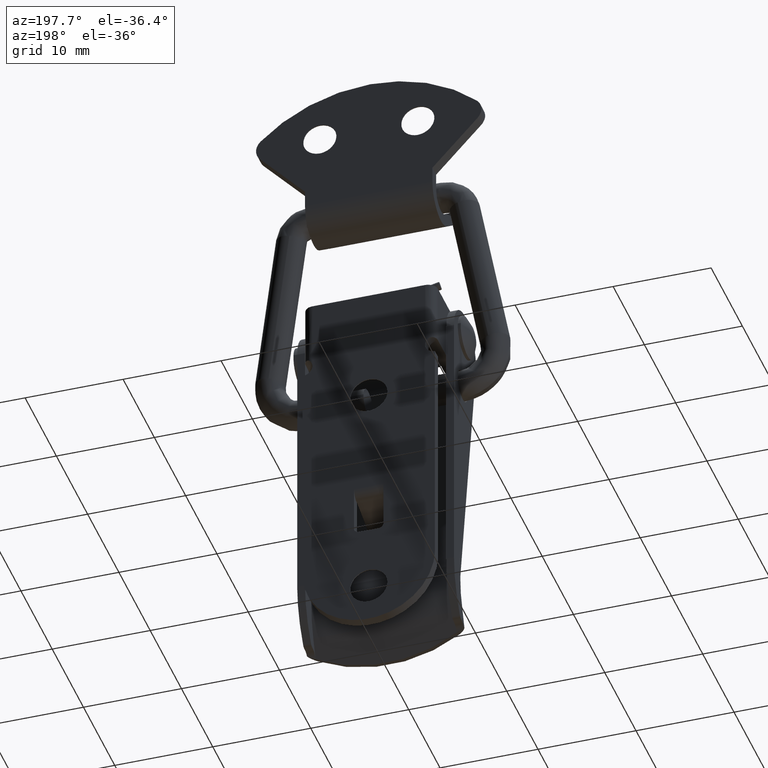
[diagram: clean part render]
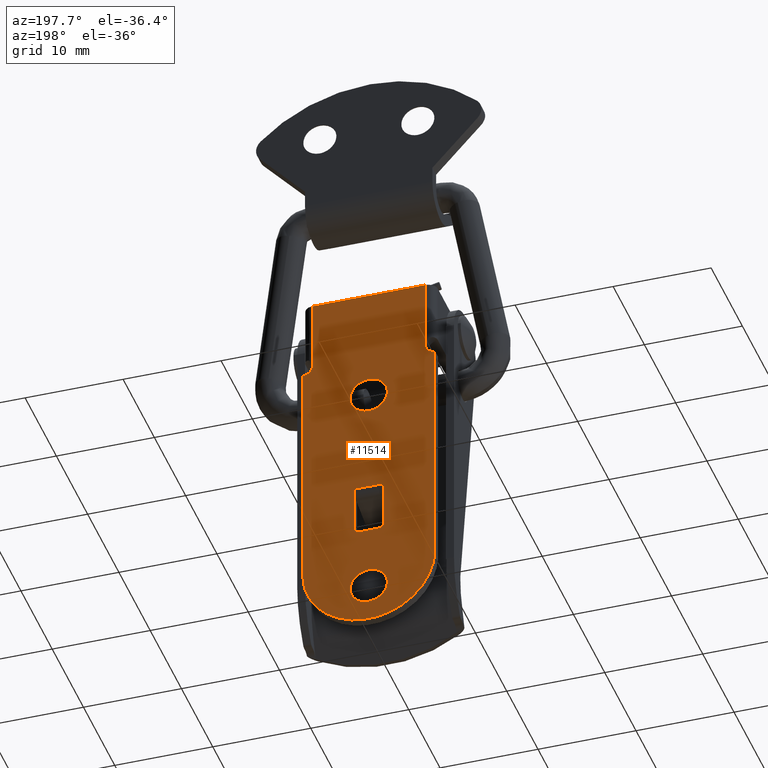
[diagram: same view with one face highlighted and labeled with its STEP entity id]
A machine part, auxiliary view. The second image highlights one B-rep face of the part: STEP entity #11514.
In plain terms, the highlighted face is a freeform B-spline surface patch.
Its self-contained STEP definition (entity closure, byte-faithful):
#9391=CARTESIAN_POINT('',(2.799999999998195,-1.896456117013207,-24.815992225307561));
#9392=VERTEX_POINT('',#9391);
#9398=CARTESIAN_POINT('',(2.799999999998195,-2.336265E-011,-26.600000000000001));
#9399=VERTEX_POINT('',#9398);
#9400=CARTESIAN_POINT('',(2.799999999998195,-2.336265E-011,-26.600000000000001));
#9401=CARTESIAN_POINT('',(2.799999999998195,-1.787341526782845,-26.599999999999998));
#9402=CARTESIAN_POINT('',(2.799999999998195,-1.896456117013206,-24.815992225307557));
#9410=(BOUNDED_CURVE()B_SPLINE_CURVE(2,(#9400,#9401,#9402),.UNSPECIFIED.,.F.,.U.)B_SPLINE_CURVE_WITH_KNOTS((3,3),(0.500000000000000,0.739332962207151),.UNSPECIFIED.)CURVE()GEOMETRIC_REPRESENTATION_ITEM()RATIONAL_B_SPLINE_CURVE((1.0,0.719603993323957,0.976072041598581))REPRESENTATION_ITEM(''));
#9411=EDGE_CURVE('',#9399,#9392,#9410,.T.);
#9413=CARTESIAN_POINT('',(2.799999999998195,0.668074151391913,-26.478672799648869));
#9414=VERTEX_POINT('',#9413);
#9415=CARTESIAN_POINT('',(2.799999999998196,0.668074151391913,-26.478672799648869));
#9416=CARTESIAN_POINT('',(2.799999999998195,0.345054033582145,-26.600000000000005));
#9417=CARTESIAN_POINT('',(2.799999999998195,-2.336265E-011,-26.600000000000001));
#9425=(BOUNDED_CURVE()B_SPLINE_CURVE(2,(#9415,#9416,#9417),.UNSPECIFIED.,.F.,.U.)B_SPLINE_CURVE_WITH_KNOTS((3,3),(0.440284170886248,0.500000000000000),.UNSPECIFIED.)CURVE()GEOMETRIC_REPRESENTATION_ITEM()RATIONAL_B_SPLINE_CURVE((0.893499554620272,0.930038554387037,1.0))REPRESENTATION_ITEM(''));
#9426=EDGE_CURVE('',#9414,#9399,#9425,.T.);
#9476=CARTESIAN_POINT('',(2.799999999998195,-2.336265E-011,-22.800000000000001));
#9477=VERTEX_POINT('',#9476);
#9478=CARTESIAN_POINT('',(2.799999999998195,-2.336265E-011,-22.800000000000001));
#9479=CARTESIAN_POINT('',(2.799999999998196,1.899999999976638,-22.799999999999997));
#9480=CARTESIAN_POINT('',(2.799999999998195,1.899999999976638,-24.699999999999999));
#9481=CARTESIAN_POINT('',(2.799999999998196,1.899999999976638,-26.015958231706708));
#9482=CARTESIAN_POINT('',(2.799999999998195,0.668074151391913,-26.478672799648873));
#9490=(BOUNDED_CURVE()B_SPLINE_CURVE(2,(#9478,#9479,#9480,#9481,#9482),.UNSPECIFIED.,.F.,.U.)B_SPLINE_CURVE_WITH_KNOTS((3,2,3),(0.0,0.250000000000000,0.440284170886248),.UNSPECIFIED.)CURVE()GEOMETRIC_REPRESENTATION_ITEM()RATIONAL_B_SPLINE_CURVE((1.0,0.707106781186547,1.0,0.777068226799511,0.893499554620271))REPRESENTATION_ITEM(''));
#9491=EDGE_CURVE('',#9477,#9414,#9490,.T.);
#9493=CARTESIAN_POINT('',(2.799999999998196,-1.896456117013207,-24.815992225307557));
#9494=CARTESIAN_POINT('',(2.799999999998196,-1.900000000023362,-24.758050250459192));
#9495=CARTESIAN_POINT('',(2.799999999998195,-1.900000000023363,-24.699999999999999));
#9496=CARTESIAN_POINT('',(2.799999999998196,-1.900000000023363,-22.799999999999997));
#9497=CARTESIAN_POINT('',(2.799999999998195,-2.336265E-011,-22.800000000000001));
#9505=(BOUNDED_CURVE()B_SPLINE_CURVE(2,(#9493,#9494,#9495,#9496,#9497),.UNSPECIFIED.,.F.,.U.)B_SPLINE_CURVE_WITH_KNOTS((3,2,3),(0.739332962207152,0.750000000000000,1.0),.UNSPECIFIED.)CURVE()GEOMETRIC_REPRESENTATION_ITEM()RATIONAL_B_SPLINE_CURVE((0.976072041598583,0.987502787862591,1.0,0.707106781186547,1.0))REPRESENTATION_ITEM(''));
#9506=EDGE_CURVE('',#9392,#9477,#9505,.T.);
#9719=CARTESIAN_POINT('',(2.799999999998195,-1.896456117013207,-47.815992225307568));
#9720=VERTEX_POINT('',#9719);
#9726=CARTESIAN_POINT('',(2.799999999998195,-2.336265E-011,-49.600000000000001));
#9727=VERTEX_POINT('',#9726);
#9728=CARTESIAN_POINT('',(2.799999999998195,-2.336265E-011,-49.600000000000001));
#9729=CARTESIAN_POINT('',(2.799999999998195,-1.787341526782845,-49.599999999999994));
#9730=CARTESIAN_POINT('',(2.799999999998195,-1.896456117013207,-47.815992225307568));
#9738=(BOUNDED_CURVE()B_SPLINE_CURVE(2,(#9728,#9729,#9730),.UNSPECIFIED.,.F.,.U.)B_SPLINE_CURVE_WITH_KNOTS((3,3),(0.500000000000000,0.739332962207151),.UNSPECIFIED.)CURVE()GEOMETRIC_REPRESENTATION_ITEM()RATIONAL_B_SPLINE_CURVE((1.0,0.719603993323957,0.976072041598581))REPRESENTATION_ITEM(''));
#9739=EDGE_CURVE('',#9727,#9720,#9738,.T.);
#9741=CARTESIAN_POINT('',(2.799999999998195,0.668074151391913,-49.478672799648884));
#9742=VERTEX_POINT('',#9741);
#9743=CARTESIAN_POINT('',(2.799999999998196,0.668074151391913,-49.478672799648876));
#9744=CARTESIAN_POINT('',(2.799999999998196,0.345054033582145,-49.600000000000001));
#9745=CARTESIAN_POINT('',(2.799999999998195,-2.336265E-011,-49.600000000000001));
#9753=(BOUNDED_CURVE()B_SPLINE_CURVE(2,(#9743,#9744,#9745),.UNSPECIFIED.,.F.,.U.)B_SPLINE_CURVE_WITH_KNOTS((3,3),(0.440284170886248,0.500000000000000),.UNSPECIFIED.)CURVE()GEOMETRIC_REPRESENTATION_ITEM()RATIONAL_B_SPLINE_CURVE((0.893499554620272,0.930038554387037,1.0))REPRESENTATION_ITEM(''));
#9754=EDGE_CURVE('',#9742,#9727,#9753,.T.);
#9804=CARTESIAN_POINT('',(2.799999999998195,-2.336265E-011,-45.799999999999997));
#9805=VERTEX_POINT('',#9804);
#9806=CARTESIAN_POINT('',(2.799999999998195,-2.336265E-011,-45.799999999999997));
#9807=CARTESIAN_POINT('',(2.799999999998196,1.899999999976638,-45.799999999999997));
#9808=CARTESIAN_POINT('',(2.799999999998195,1.899999999976638,-47.700000000000003));
#9809=CARTESIAN_POINT('',(2.799999999998196,1.899999999976638,-49.015958231706705));
#9810=CARTESIAN_POINT('',(2.799999999998195,0.668074151391913,-49.478672799648876));
#9818=(BOUNDED_CURVE()B_SPLINE_CURVE(2,(#9806,#9807,#9808,#9809,#9810),.UNSPECIFIED.,.F.,.U.)B_SPLINE_CURVE_WITH_KNOTS((3,2,3),(0.0,0.250000000000000,0.440284170886248),.UNSPECIFIED.)CURVE()GEOMETRIC_REPRESENTATION_ITEM()RATIONAL_B_SPLINE_CURVE((1.0,0.707106781186547,1.0,0.777068226799511,0.893499554620271))REPRESENTATION_ITEM(''));
#9819=EDGE_CURVE('',#9805,#9742,#9818,.T.);
#9821=CARTESIAN_POINT('',(2.799999999998195,-1.896456117013207,-47.815992225307568));
#9822=CARTESIAN_POINT('',(2.799999999998195,-1.900000000023362,-47.758050250459192));
#9823=CARTESIAN_POINT('',(2.799999999998195,-1.900000000023363,-47.700000000000003));
#9824=CARTESIAN_POINT('',(2.799999999998196,-1.900000000023363,-45.799999999999997));
#9825=CARTESIAN_POINT('',(2.799999999998195,-2.336265E-011,-45.799999999999997));
#9833=(BOUNDED_CURVE()B_SPLINE_CURVE(2,(#9821,#9822,#9823,#9824,#9825),.UNSPECIFIED.,.F.,.U.)B_SPLINE_CURVE_WITH_KNOTS((3,2,3),(0.739332962207151,0.750000000000000,1.0),.UNSPECIFIED.)CURVE()GEOMETRIC_REPRESENTATION_ITEM()RATIONAL_B_SPLINE_CURVE((0.976072041598582,0.987502787862591,1.0,0.707106781186547,1.0))REPRESENTATION_ITEM(''));
#9834=EDGE_CURVE('',#9720,#9805,#9833,.T.);
#10383=CARTESIAN_POINT('',(2.799999999998140,1.499999999979706,-35.735276180409997));
#10384=VERTEX_POINT('',#10383);
#10400=CARTESIAN_POINT('',(2.799999999998195,-1.500000000020180,-35.735276180409997));
#10401=VERTEX_POINT('',#10400);
#10402=CARTESIAN_POINT('',(2.799999999998195,-1.500000000020180,-35.735276180409997));
#10403=CARTESIAN_POINT('',(2.799999999998140,1.499999999979706,-35.735276180409997));
#10404=QUASI_UNIFORM_CURVE('',1,(#10402,#10403),.UNSPECIFIED.,.F.,.U.);
#10405=EDGE_CURVE('',#10401,#10384,#10404,.T.);
#10561=CARTESIAN_POINT('',(2.799999999998140,-1.500000000020180,-40.499999999948912));
#10562=VERTEX_POINT('',#10561);
#10563=CARTESIAN_POINT('',(2.799999999998195,-1.500000000020180,-35.735276180409997));
#10564=CARTESIAN_POINT('',(2.799999999998140,-1.500000000020180,-40.499999999948912));
#10565=QUASI_UNIFORM_CURVE('',1,(#10563,#10564),.UNSPECIFIED.,.F.,.U.);
#10566=EDGE_CURVE('',#10401,#10562,#10565,.T.);
#10581=CARTESIAN_POINT('',(2.799999999998140,1.499999999979820,-40.499999999946702));
#10582=VERTEX_POINT('',#10581);
#10583=CARTESIAN_POINT('',(2.799999999998140,1.499999999979820,-40.499999999946702));
#10584=CARTESIAN_POINT('',(2.799999999998140,1.499999999979706,-35.735276180409997));
#10585=QUASI_UNIFORM_CURVE('',1,(#10583,#10584),.UNSPECIFIED.,.F.,.U.);
#10586=EDGE_CURVE('',#10582,#10384,#10585,.T.);
#10633=CARTESIAN_POINT('',(2.799999999998140,0.999999999980389,-40.999999999946702));
#10634=VERTEX_POINT('',#10633);
#10640=CARTESIAN_POINT('',(2.799999999998140,0.999999999980389,-40.999999999946702));
#10641=CARTESIAN_POINT('',(2.799999999998139,1.499999999979822,-40.999999999946120));
#10642=CARTESIAN_POINT('',(2.799999999998140,1.499999999979821,-40.499999999946702));
#10650=(BOUNDED_CURVE()B_SPLINE_CURVE(2,(#10640,#10641,#10642),.UNSPECIFIED.,.F.,.U.)CURVE()GEOMETRIC_REPRESENTATION_ITEM()QUASI_UNIFORM_CURVE()RATIONAL_B_SPLINE_CURVE((1.0,0.707106781186949,1.0))REPRESENTATION_ITEM(''));
#10651=EDGE_CURVE('',#10634,#10582,#10650,.T.);
#10669=CARTESIAN_POINT('',(2.799999999998140,-1.000000000019610,-40.999999999948798));
#10670=VERTEX_POINT('',#10669);
#10676=CARTESIAN_POINT('',(2.799999999998140,-1.000000000019610,-40.999999999948798));
#10677=CARTESIAN_POINT('',(2.799999999998140,0.999999999980389,-40.999999999946702));
#10678=QUASI_UNIFORM_CURVE('',1,(#10676,#10677),.UNSPECIFIED.,.F.,.U.);
#10679=EDGE_CURVE('',#10670,#10634,#10678,.T.);
#10715=CARTESIAN_POINT('',(2.799999999998140,-1.500000000020180,-40.499999999948912));
#10716=CARTESIAN_POINT('',(2.799999999998140,-1.500000000020180,-40.707106781135614));
#10717=CARTESIAN_POINT('',(2.799999999998140,-1.353553390613252,-40.853553390542380));
#10718=CARTESIAN_POINT('',(2.799999999998140,-1.207106781206324,-40.999999999949139));
#10719=CARTESIAN_POINT('',(2.799999999998140,-1.000000000019610,-40.999999999948912));
#10727=(BOUNDED_CURVE()B_SPLINE_CURVE(2,(#10715,#10716,#10717,#10718,#10719),.UNSPECIFIED.,.F.,.U.)B_SPLINE_CURVE_WITH_KNOTS((3,2,3),(0.0,0.500000000000000,1.0),.UNSPECIFIED.)CURVE()GEOMETRIC_REPRESENTATION_ITEM()RATIONAL_B_SPLINE_CURVE((1.0,0.923879532511178,1.0,0.923879532511178,1.0))REPRESENTATION_ITEM(''));
#10728=EDGE_CURVE('',#10562,#10670,#10727,.T.);
#10750=CARTESIAN_POINT('',(2.799999999998195,-5.750000000121600,-12.699999999999999));
#10751=VERTEX_POINT('',#10750);
#10772=CARTESIAN_POINT('',(2.799999999998140,-5.750000000122270,-19.899999999992300));
#10773=VERTEX_POINT('',#10772);
#10807=CARTESIAN_POINT('',(2.799999999998195,-5.750000000121600,-12.699999999999999));
#10808=CARTESIAN_POINT('',(2.799999999998140,-5.750000000122270,-19.899999999992300));
#10809=QUASI_UNIFORM_CURVE('',1,(#10807,#10808),.UNSPECIFIED.,.F.,.U.);
#10810=EDGE_CURVE('',#10751,#10773,#10809,.T.);
#10829=CARTESIAN_POINT('',(2.799999999998195,5.749999999878350,-12.699999999999999));
#10830=VERTEX_POINT('',#10829);
#10846=CARTESIAN_POINT('',(2.799999999998140,5.749999999879890,-19.899999999994598));
#10847=VERTEX_POINT('',#10846);
#10848=CARTESIAN_POINT('',(2.799999999998140,5.749999999879890,-19.899999999994598));
#10849=CARTESIAN_POINT('',(2.799999999998195,5.749999999878350,-12.699999999999999));
#10850=QUASI_UNIFORM_CURVE('',1,(#10848,#10849),.UNSPECIFIED.,.F.,.U.);
#10851=EDGE_CURVE('',#10847,#10830,#10850,.T.);
#10910=CARTESIAN_POINT('',(2.799999999998140,-6.750000000121590,-44.950000000007300));
#10911=VERTEX_POINT('',#10910);
#10917=CARTESIAN_POINT('',(2.799999999998140,-6.750000000121590,-20.899999999992300));
#10918=VERTEX_POINT('',#10917);
#10919=CARTESIAN_POINT('',(2.799999999998140,-6.750000000121590,-44.950000000007300));
#10920=CARTESIAN_POINT('',(2.799999999998140,-6.750000000121590,-20.899999999992300));
#10921=QUASI_UNIFORM_CURVE('',1,(#10919,#10920),.UNSPECIFIED.,.F.,.U.);
#10922=EDGE_CURVE('',#10911,#10918,#10921,.T.);
#10950=CARTESIAN_POINT('',(2.799999999998140,-6.750000000121590,-20.899999999992300));
#10951=CARTESIAN_POINT('',(2.799999999998140,-5.750000000122269,-20.899999999992300));
#10952=CARTESIAN_POINT('',(2.799999999998140,-5.750000000122270,-19.899999999992300));
#10960=(BOUNDED_CURVE()B_SPLINE_CURVE(2,(#10950,#10951,#10952),.UNSPECIFIED.,.F.,.U.)CURVE()GEOMETRIC_REPRESENTATION_ITEM()QUASI_UNIFORM_CURVE()RATIONAL_B_SPLINE_CURVE((1.0,0.707106781186548,1.0))REPRESENTATION_ITEM(''));
#10961=EDGE_CURVE('',#10918,#10773,#10960,.T.);
#11019=CARTESIAN_POINT('',(2.799999999998140,6.749999999878470,-20.899999999994598));
#11020=VERTEX_POINT('',#11019);
#11021=CARTESIAN_POINT('',(2.799999999998140,5.749999999879890,-19.899999999994598));
#11022=CARTESIAN_POINT('',(2.799999999998140,5.749999999879890,-20.899999999994606));
#11023=CARTESIAN_POINT('',(2.799999999998140,6.749999999878470,-20.899999999994598));
#11031=(BOUNDED_CURVE()B_SPLINE_CURVE(2,(#11021,#11022,#11023),.UNSPECIFIED.,.F.,.U.)CURVE()GEOMETRIC_REPRESENTATION_ITEM()QUASI_UNIFORM_CURVE()RATIONAL_B_SPLINE_CURVE((1.0,0.707106781186548,1.0))REPRESENTATION_ITEM(''));
#11032=EDGE_CURVE('',#10847,#11020,#11031,.T.);
#11055=CARTESIAN_POINT('',(2.799999999998140,6.749999999878299,-44.950000000007300));
#11056=VERTEX_POINT('',#11055);
#11057=CARTESIAN_POINT('',(2.799999999998140,6.749999999878470,-20.899999999994598));
#11058=CARTESIAN_POINT('',(2.799999999998140,6.749999999878299,-44.950000000007300));
#11059=QUASI_UNIFORM_CURVE('',1,(#11057,#11058),.UNSPECIFIED.,.F.,.U.);
#11060=EDGE_CURVE('',#11020,#11056,#11059,.T.);
#11104=CARTESIAN_POINT('',(2.799999999998140,-6.750000000121588,-44.950000000007300));
#11105=CARTESIAN_POINT('',(2.799999999998140,-6.750000000121587,-51.700000000007293));
#11106=CARTESIAN_POINT('',(2.799999999998140,-1.215881E-010,-51.700000000007293));
#11107=CARTESIAN_POINT('',(2.799999999998140,6.749999999878411,-51.700000000007293));
#11108=CARTESIAN_POINT('',(2.799999999998140,6.749999999878411,-44.950000000007300));
#11116=(BOUNDED_CURVE()B_SPLINE_CURVE(2,(#11104,#11105,#11106,#11107,#11108),.UNSPECIFIED.,.F.,.U.)B_SPLINE_CURVE_WITH_KNOTS((3,2,3),(0.0,0.500000000000000,1.0),.UNSPECIFIED.)CURVE()GEOMETRIC_REPRESENTATION_ITEM()RATIONAL_B_SPLINE_CURVE((1.0,0.707106781186548,1.0,0.707106781186548,1.0))REPRESENTATION_ITEM(''));
#11117=EDGE_CURVE('',#10911,#11056,#11116,.T.);
#11386=CARTESIAN_POINT('',(2.799999999998195,5.749999999878350,-12.699999999999999));
#11387=CARTESIAN_POINT('',(2.799999999998195,-5.750000000121600,-12.699999999999999));
#11388=QUASI_UNIFORM_CURVE('',1,(#11386,#11387),.UNSPECIFIED.,.F.,.U.);
#11389=EDGE_CURVE('',#10830,#10751,#11388,.T.);
#11479=CARTESIAN_POINT('',(2.799999999998195,-7.424324973955972,-53.648051022730257));
#11480=CARTESIAN_POINT('',(2.799999999998195,-7.424324973955972,-10.751948977276930));
#11481=CARTESIAN_POINT('',(2.799999999998195,7.424325335811071,-53.648051022730257));
#11482=CARTESIAN_POINT('',(2.799999999998195,7.424325335811071,-10.751948977276930));
#11483=B_SPLINE_SURFACE_WITH_KNOTS('',1,1,((#11479,#11481),(#11480,#11482)),.UNSPECIFIED.,.F.,.F.,.U.,(2,2),(2,2),(0.0,42.896102045453333),(0.0,14.848650309767040),.UNSPECIFIED.);
#11484=ORIENTED_EDGE('',*,*,#11032,.F.);
#11485=ORIENTED_EDGE('',*,*,#10851,.T.);
#11486=ORIENTED_EDGE('',*,*,#11389,.T.);
#11487=ORIENTED_EDGE('',*,*,#10810,.T.);
#11488=ORIENTED_EDGE('',*,*,#10961,.F.);
#11489=ORIENTED_EDGE('',*,*,#10922,.F.);
#11490=ORIENTED_EDGE('',*,*,#11117,.T.);
#11491=ORIENTED_EDGE('',*,*,#11060,.F.);
#11492=EDGE_LOOP('',(#11484,#11485,#11486,#11487,#11488,#11489,#11490,#11491));
#11493=FACE_OUTER_BOUND('',#11492,.T.);
#11494=ORIENTED_EDGE('',*,*,#10566,.F.);
#11495=ORIENTED_EDGE('',*,*,#10405,.T.);
#11496=ORIENTED_EDGE('',*,*,#10586,.F.);
#11497=ORIENTED_EDGE('',*,*,#10651,.F.);
#11498=ORIENTED_EDGE('',*,*,#10679,.F.);
#11499=ORIENTED_EDGE('',*,*,#10728,.F.);
#11500=EDGE_LOOP('',(#11494,#11495,#11496,#11497,#11498,#11499));
#11501=FACE_BOUND('',#11500,.T.);
#11502=ORIENTED_EDGE('',*,*,#9739,.T.);
#11503=ORIENTED_EDGE('',*,*,#9834,.T.);
#11504=ORIENTED_EDGE('',*,*,#9819,.T.);
#11505=ORIENTED_EDGE('',*,*,#9754,.T.);
#11506=EDGE_LOOP('',(#11502,#11503,#11504,#11505));
#11507=FACE_BOUND('',#11506,.T.);
#11508=ORIENTED_EDGE('',*,*,#9411,.T.);
#11509=ORIENTED_EDGE('',*,*,#9506,.T.);
#11510=ORIENTED_EDGE('',*,*,#9491,.T.);
#11511=ORIENTED_EDGE('',*,*,#9426,.T.);
#11512=EDGE_LOOP('',(#11508,#11509,#11510,#11511));
#11513=FACE_BOUND('',#11512,.T.);
#11514=ADVANCED_FACE('',(#11493,#11501,#11507,#11513),#11483,.F.);